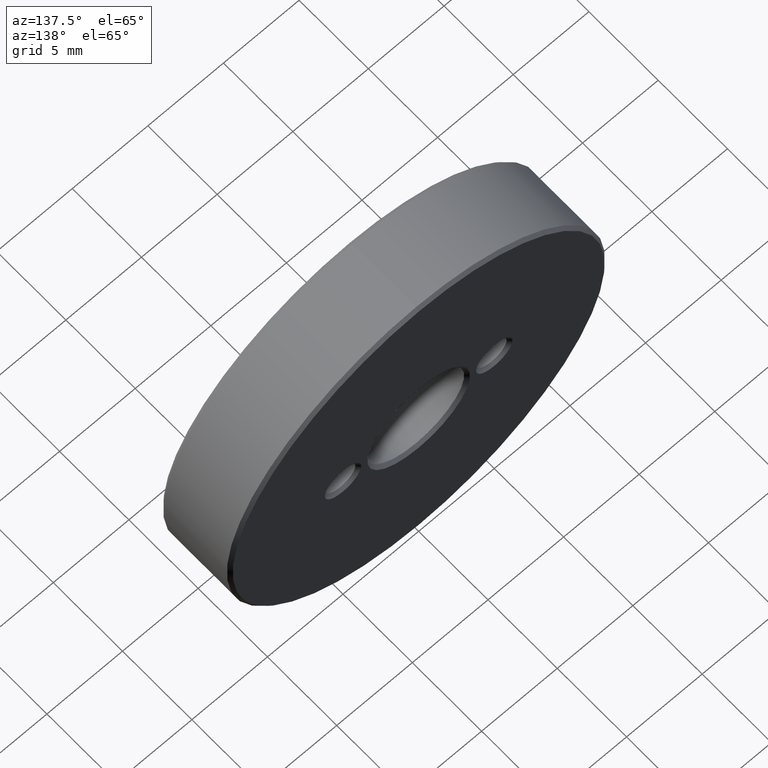
[diagram: clean part render]
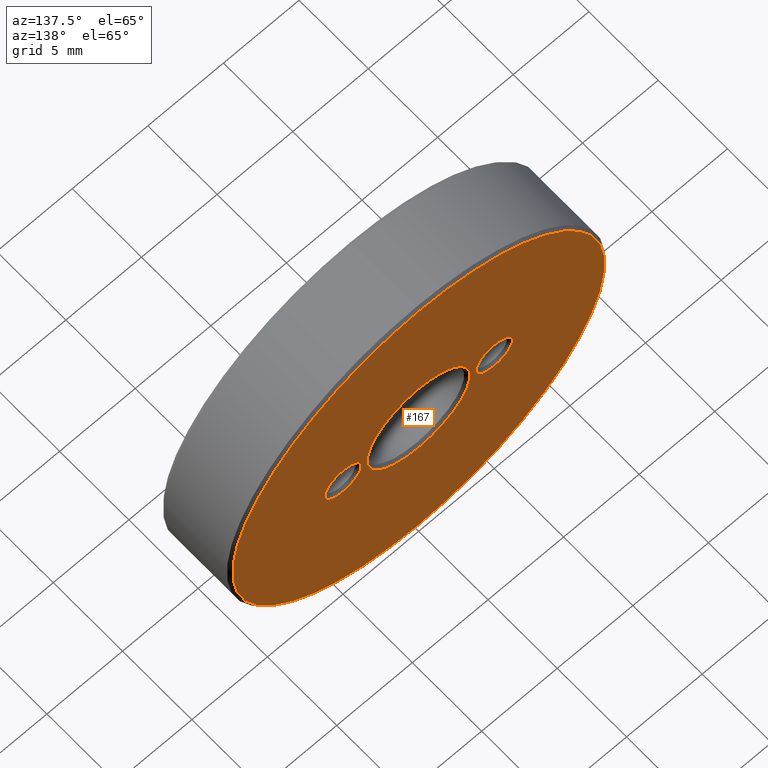
[diagram: same view with one face highlighted and labeled with its STEP entity id]
A machine part, auxiliary view. The second image highlights one B-rep face of the part: STEP entity #167.
In plain terms, the highlighted planar face has unit normal (0, 1, 0).
Its self-contained STEP definition (entity closure, byte-faithful):
#4 = EDGE_LOOP ( 'NONE', ( #134 ) ) ;
#8 = EDGE_LOOP ( 'NONE', ( #231 ) ) ;
#11 = AXIS2_PLACEMENT_3D ( 'NONE', #185, #92, #363 ) ;
#13 = DIRECTION ( 'NONE',  ( 0.000000000000000000, 0.000000000000000000, 1.000000000000000000 ) ) ;
#25 = FACE_BOUND ( 'NONE', #8, .T. ) ;
#32 = CARTESIAN_POINT ( 'NONE',  ( 5.000000000000000000, 5.000000000000000000, 1.204999999999996074 ) ) ;
#35 = CIRCLE ( 'NONE', #222, 12.30000000000000249 ) ;
#45 = CARTESIAN_POINT ( 'NONE',  ( 0.000000000000000000, 5.000000000000000000, 0.000000000000000000 ) ) ;
#59 = CARTESIAN_POINT ( 'NONE',  ( 0.000000000000000000, 5.000000000000000000, 12.30000000000000249 ) ) ;
#92 = DIRECTION ( 'NONE',  ( 0.000000000000000000, 1.000000000000000000, 0.000000000000000000 ) ) ;
#109 = CIRCLE ( 'NONE', #332, 3.400000000000003908 ) ;
#113 = ORIENTED_EDGE ( 'NONE', *, *, #313, .T. ) ;
#117 = DIRECTION ( 'NONE',  ( 0.000000000000000000, 0.000000000000000000, 1.000000000000000000 ) ) ;
#118 = FACE_BOUND ( 'NONE', #372, .T. ) ;
#121 = CARTESIAN_POINT ( 'NONE',  ( -5.000000000000000000, 5.000000000000000000, 1.205000000000008065 ) ) ;
#122 = FACE_OUTER_BOUND ( 'NONE', #4, .T. ) ;
#130 = CARTESIAN_POINT ( 'NONE',  ( -5.000000000000000000, 5.000000000000000000, 0.000000000000000000 ) ) ;
#134 = ORIENTED_EDGE ( 'NONE', *, *, #367, .T. ) ;
#147 = DIRECTION ( 'NONE',  ( 0.000000000000000000, 1.000000000000000000, 0.000000000000000000 ) ) ;
#154 = EDGE_CURVE ( 'NONE', #392, #392, #257, .T. ) ;
#160 = PLANE ( 'NONE',  #11 ) ;
#167 = ADVANCED_FACE ( 'NONE', ( #243, #25, #122, #118 ), #160, .T. ) ;
#172 = ORIENTED_EDGE ( 'NONE', *, *, #154, .T. ) ;
#185 = CARTESIAN_POINT ( 'NONE',  ( 0.000000000000000000, 5.000000000000000000, 0.000000000000000000 ) ) ;
#190 = EDGE_LOOP ( 'NONE', ( #172 ) ) ;
#198 = DIRECTION ( 'NONE',  ( -0.000000000000000000, -1.000000000000000000, -0.000000000000000000 ) ) ;
#202 = CARTESIAN_POINT ( 'NONE',  ( 5.000000000000000000, 5.000000000000000000, -1.836970198721029194E-15 ) ) ;
#209 = VERTEX_POINT ( 'NONE', #59 ) ;
#222 = AXIS2_PLACEMENT_3D ( 'NONE', #382, #147, #13 ) ;
#231 = ORIENTED_EDGE ( 'NONE', *, *, #339, .T. ) ;
#243 = FACE_BOUND ( 'NONE', #190, .T. ) ;
#249 = VERTEX_POINT ( 'NONE', #371 ) ;
#257 = CIRCLE ( 'NONE', #297, 1.205000000000008065 ) ;
#260 = AXIS2_PLACEMENT_3D ( 'NONE', #202, #198, #117 ) ;
#284 = VERTEX_POINT ( 'NONE', #32 ) ;
#286 = CIRCLE ( 'NONE', #260, 1.204999999999997851 ) ;
#297 = AXIS2_PLACEMENT_3D ( 'NONE', #130, #390, #310 ) ;
#310 = DIRECTION ( 'NONE',  ( 0.000000000000000000, 0.000000000000000000, 1.000000000000000000 ) ) ;
#313 = EDGE_CURVE ( 'NONE', #284, #284, #286, .T. ) ;
#328 = DIRECTION ( 'NONE',  ( 0.000000000000000000, 0.000000000000000000, 1.000000000000000000 ) ) ;
#332 = AXIS2_PLACEMENT_3D ( 'NONE', #45, #357, #328 ) ;
#339 = EDGE_CURVE ( 'NONE', #249, #249, #109, .T. ) ;
#357 = DIRECTION ( 'NONE',  ( -0.000000000000000000, -1.000000000000000000, -0.000000000000000000 ) ) ;
#363 = DIRECTION ( 'NONE',  ( 0.000000000000000000, -0.000000000000000000, 1.000000000000000000 ) ) ;
#367 = EDGE_CURVE ( 'NONE', #209, #209, #35, .T. ) ;
#371 = CARTESIAN_POINT ( 'NONE',  ( 0.000000000000000000, 5.000000000000000000, 3.400000000000003908 ) ) ;
#372 = EDGE_LOOP ( 'NONE', ( #113 ) ) ;
#382 = CARTESIAN_POINT ( 'NONE',  ( 0.000000000000000000, 5.000000000000000000, 0.000000000000000000 ) ) ;
#390 = DIRECTION ( 'NONE',  ( -0.000000000000000000, -1.000000000000000000, -0.000000000000000000 ) ) ;
#392 = VERTEX_POINT ( 'NONE', #121 ) ;